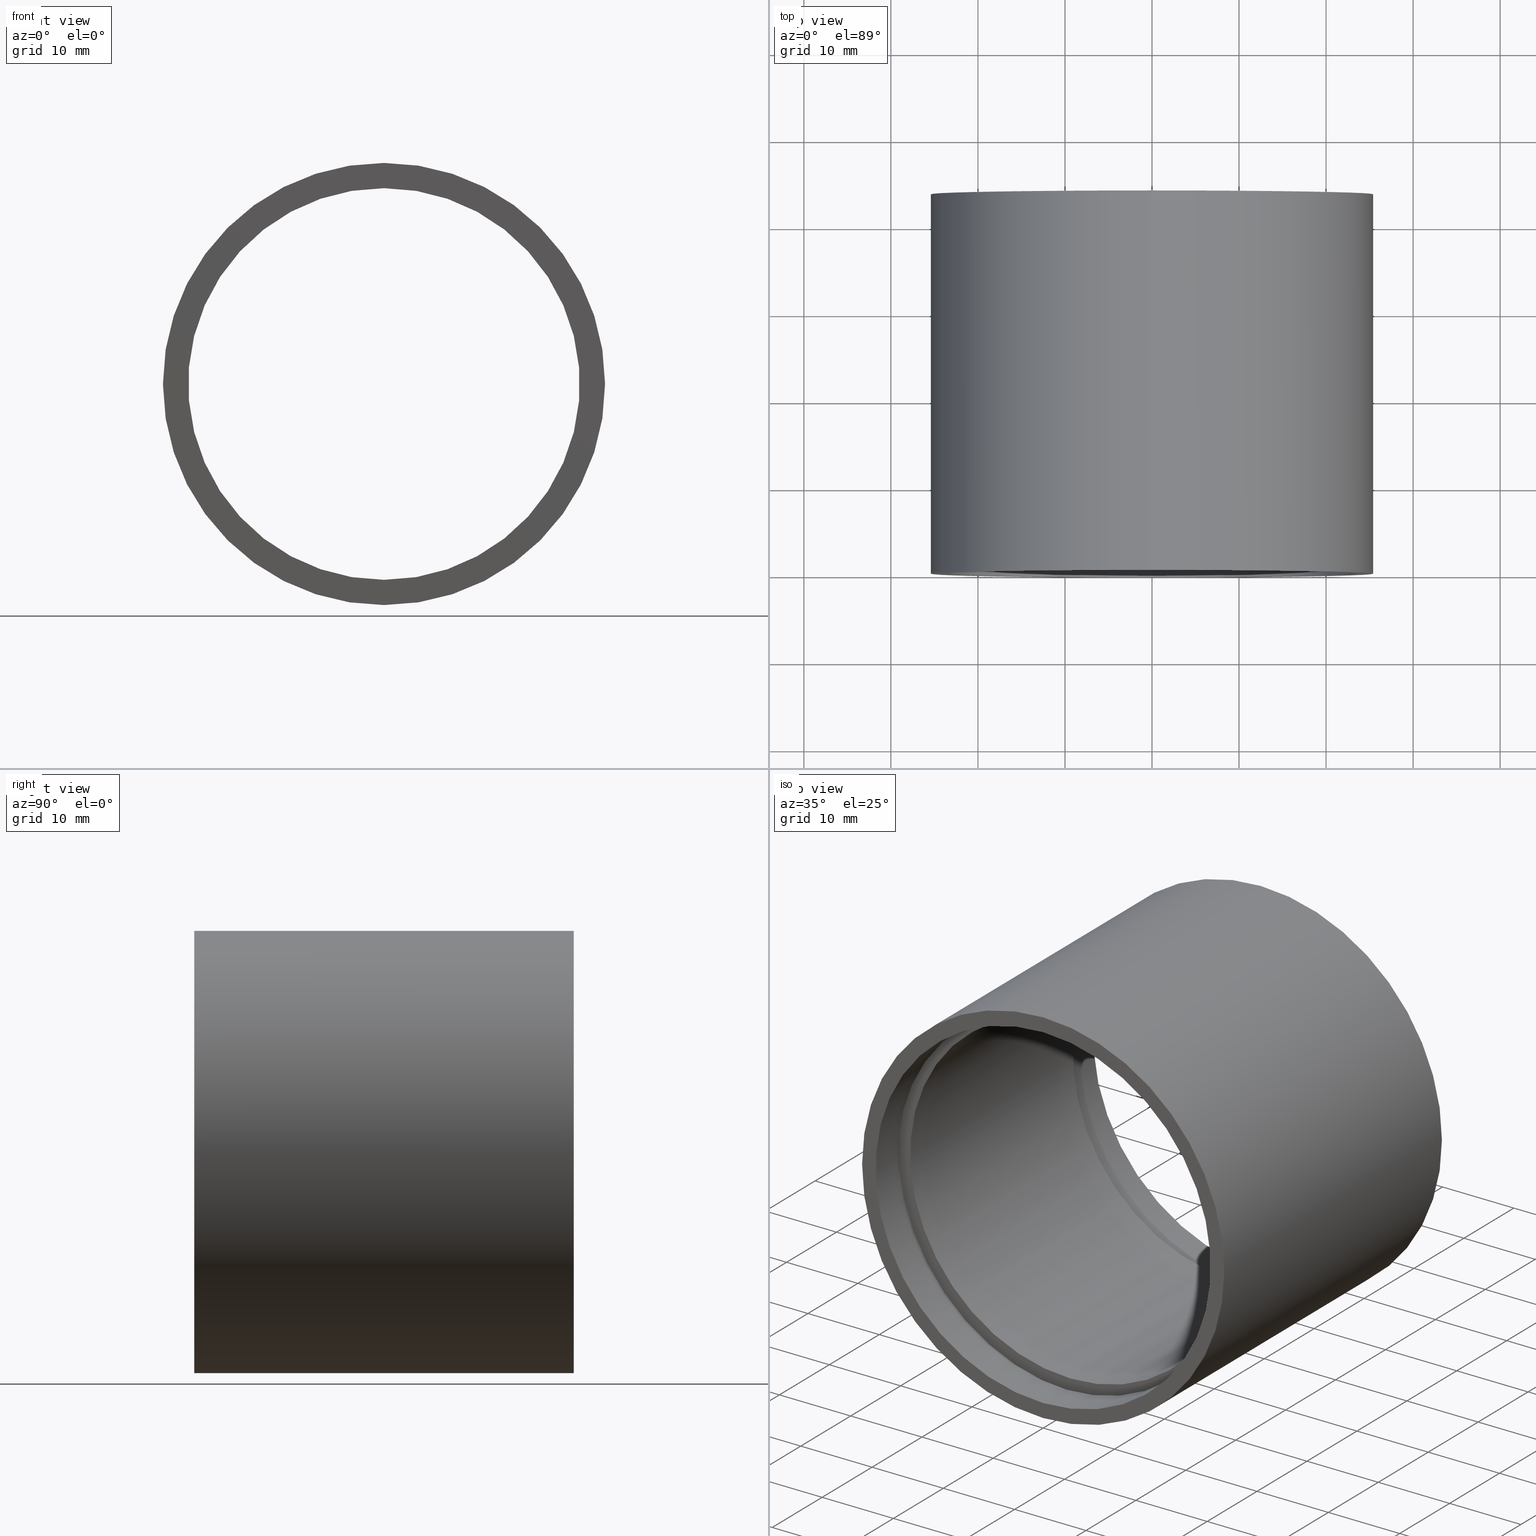
[diagram: canonical four-view strip — front | top / right | iso, engineering-drawing reading convention]
A machine part, canonical four-view strip (front | top / right | iso — engineering-drawing reading convention). The complete STEP part file that produces these views, byte-faithful:
ISO-10303-21;
HEADER;
FILE_DESCRIPTION (( 'STEP AP214' ),
    '1' );
FILE_NAME ('503019.STEP',
    '2019-09-06T02:04:59',
    ( '' ),
    ( '' ),
    'SwSTEP 2.0',
    'SolidWorks 2016',
    '' );
FILE_SCHEMA (( 'AUTOMOTIVE_DESIGN' ));
ENDSEC;

DATA;
#1 = DIRECTION ( 'NONE',  ( 0.0000000000000000000, 0.0000000000000000000, 1.000000000000000000 ) ) ;
#2 = FACE_OUTER_BOUND ( 'NONE', #495, .T. ) ;
#3 = CARTESIAN_POINT ( 'NONE',  ( 0.0000000000000000000, -2.775557561562891400E-014, 25.40000000000001300 ) ) ;
#4 = VERTEX_POINT ( 'NONE', #619 ) ;
#5 = VERTEX_POINT ( 'NONE', #173 ) ;
#6 = DIRECTION ( 'NONE',  ( 0.0000000000000000000, 0.0000000000000000000, 1.000000000000000000 ) ) ;
#7 = AXIS2_PLACEMENT_3D ( 'NONE', #522, #581, #273 ) ;
#8 = SHAPE_DEFINITION_REPRESENTATION ( #128, #212 ) ;
#9 = PRESENTATION_STYLE_ASSIGNMENT (( #90 ) ) ;
#10 = AXIS2_PLACEMENT_3D ( 'NONE', #372, #60, #527 ) ;
#11 = AXIS2_PLACEMENT_3D ( 'NONE', #347, #494, #85 ) ;
#12 = PRESENTATION_STYLE_ASSIGNMENT (( #189 ) ) ;
#13 = VERTEX_POINT ( 'NONE', #504 ) ;
#14 = EDGE_CURVE ( 'NONE', #148, #507, #463, .T. ) ;
#15 = DIRECTION ( 'NONE',  ( -0.0000000000000000000, 1.000000000000000000, -0.0000000000000000000 ) ) ;
#16 = DIRECTION ( 'NONE',  ( -0.0000000000000000000, 1.000000000000000000, -0.0000000000000000000 ) ) ;
#17 = ORIENTED_EDGE ( 'NONE', *, *, #324, .F. ) ;
#18 = LINE ( 'NONE', #251, #374 ) ;
#19 = DIRECTION ( 'NONE',  ( 0.0000000000000000000, 0.0000000000000000000, 1.000000000000000000 ) ) ;
#20 = LINE ( 'NONE', #156, #361 ) ;
#21 = DIRECTION ( 'NONE',  ( -0.0000000000000000000, 1.000000000000000000, -0.0000000000000000000 ) ) ;
#22 = ORIENTED_EDGE ( 'NONE', *, *, #244, .T. ) ;
#23 = EDGE_LOOP ( 'NONE', ( #110, #477 ) ) ;
#24 = ADVANCED_FACE ( 'NONE', ( #491 ), #394, .T. ) ;
#25 = AXIS2_PLACEMENT_3D ( 'NONE', #187, #516, #57 ) ;
#26 = MECHANICAL_DESIGN_GEOMETRIC_PRESENTATION_REPRESENTATION (  '', ( #616 ), #55 ) ;
#27 = DIRECTION ( 'NONE',  ( -0.0000000000000000000, 1.000000000000000000, -0.0000000000000000000 ) ) ;
#28 =( LENGTH_UNIT ( ) NAMED_UNIT ( * ) SI_UNIT ( .MILLI., .METRE. ) );
#29 = CYLINDRICAL_SURFACE ( 'NONE', #259, 25.40000000000001600 ) ;
#30 = EDGE_CURVE ( 'NONE', #296, #421, #528, .T. ) ;
#31 = COLOUR_RGB ( '',1.000000000000000000, 1.000000000000000000, 1.000000000000000000 ) ;
#32 = ORIENTED_EDGE ( 'NONE', *, *, #179, .F. ) ;
#33 = DIRECTION ( 'NONE',  ( 0.0000000000000000000, 0.0000000000000000000, 1.000000000000000000 ) ) ;
#34 = ORIENTED_EDGE ( 'NONE', *, *, #539, .T. ) ;
#35 =( NAMED_UNIT ( * ) SI_UNIT ( $, .STERADIAN. ) SOLID_ANGLE_UNIT ( ) );
#36 =( NAMED_UNIT ( * ) SI_UNIT ( $, .STERADIAN. ) SOLID_ANGLE_UNIT ( ) );
#37 = CARTESIAN_POINT ( 'NONE',  ( 0.0000000000000000000, 161.3761669434274500, 0.0000000000000000000 ) ) ;
#38 = FILL_AREA_STYLE ('',( #499 ) ) ;
#39 = AXIS2_PLACEMENT_3D ( 'NONE', #101, #318, #515 ) ;
#40 = PRESENTATION_LAYER_ASSIGNMENT (  '', '', ( #87 ) ) ;
#41 =( GEOMETRIC_REPRESENTATION_CONTEXT ( 3 ) GLOBAL_UNCERTAINTY_ASSIGNED_CONTEXT ( ( #157 ) ) GLOBAL_UNIT_ASSIGNED_CONTEXT ( ( #596, #426, #588 ) ) REPRESENTATION_CONTEXT ( 'NONE', 'WORKASPACE' ) );
#42 = ORIENTED_EDGE ( 'NONE', *, *, #486, .T. ) ;
#43 = DIRECTION ( 'NONE',  ( 0.0000000000000000000, 0.0000000000000000000, 1.000000000000000000 ) ) ;
#44 = CARTESIAN_POINT ( 'NONE',  ( 22.50000000000001800, 5.499999999999984900, 0.0000000000000000000 ) ) ;
#45 = EDGE_CURVE ( 'NONE', #427, #624, #18, .T. ) ;
#46 = ORIENTED_EDGE ( 'NONE', *, *, #93, .F. ) ;
#47 = COLOUR_RGB ( '',1.000000000000000000, 1.000000000000000000, 1.000000000000000000 ) ;
#48 = PRODUCT_DEFINITION_CONTEXT ( 'detailed design', #534, 'design' ) ;
#49 = VECTOR ( 'NONE', #307, 1000.000000000000000 ) ;
#50 = PLANE ( 'NONE',  #39 ) ;
#51 = EDGE_LOOP ( 'NONE', ( #191, #606 ) ) ;
#52 = ORIENTED_EDGE ( 'NONE', *, *, #502, .F. ) ;
#53 = DIRECTION ( 'NONE',  ( 0.0000000000000000000, 0.0000000000000000000, 1.000000000000000000 ) ) ;
#54 = AXIS2_PLACEMENT_3D ( 'NONE', #364, #419, #471 ) ;
#55 =( GEOMETRIC_REPRESENTATION_CONTEXT ( 3 ) GLOBAL_UNCERTAINTY_ASSIGNED_CONTEXT ( ( #376 ) ) GLOBAL_UNIT_ASSIGNED_CONTEXT ( ( #548, #248, #36 ) ) REPRESENTATION_CONTEXT ( 'NONE', 'WORKASPACE' ) );
#56 = LINE ( 'NONE', #478, #188 ) ;
#57 = DIRECTION ( 'NONE',  ( 0.0000000000000000000, 0.0000000000000000000, 1.000000000000000000 ) ) ;
#58 = CARTESIAN_POINT ( 'NONE',  ( 2.951398785945125600E-015, 38.09999999999998000, -24.10000000000003300 ) ) ;
#59 = VERTEX_POINT ( 'NONE', #396 ) ;
#60 = DIRECTION ( 'NONE',  ( -0.0000000000000000000, 1.000000000000000000, -0.0000000000000000000 ) ) ;
#61 = SURFACE_STYLE_USAGE ( .BOTH. , #158 ) ;
#62 = ORIENTED_EDGE ( 'NONE', *, *, #72, .T. ) ;
#63 =( NAMED_UNIT ( * ) PLANE_ANGLE_UNIT ( ) SI_UNIT ( $, .RADIAN. ) );
#64 = FACE_BOUND ( 'NONE', #309, .T. ) ;
#65 =( NAMED_UNIT ( * ) PLANE_ANGLE_UNIT ( ) SI_UNIT ( $, .RADIAN. ) );
#66 = EDGE_LOOP ( 'NONE', ( #279, #579 ) ) ;
#67 = CARTESIAN_POINT ( 'NONE',  ( 0.0000000000000000000, 161.3761669434274500, 0.0000000000000000000 ) ) ;
#68 = FACE_OUTER_BOUND ( 'NONE', #399, .T. ) ;
#69 = CYLINDRICAL_SURFACE ( 'NONE', #496, 24.10000000000001900 ) ;
#70 = CARTESIAN_POINT ( 'NONE',  ( 2.951398785945125600E-015, 39.09999999999998000, -24.10000000000003300 ) ) ;
#71 = FILL_AREA_STYLE ('',( #118 ) ) ;
#72 = EDGE_CURVE ( 'NONE', #587, #80, #249, .T. ) ;
#73 = EDGE_LOOP ( 'NONE', ( #569, #170 ) ) ;
#74 = MECHANICAL_DESIGN_GEOMETRIC_PRESENTATION_REPRESENTATION (  '', ( #520 ), #363 ) ;
#75 = ORIENTED_EDGE ( 'NONE', *, *, #30, .T. ) ;
#76 = CARTESIAN_POINT ( 'NONE',  ( 2.951398785945123600E-015, 5.499999999999976900, -24.10000000000001900 ) ) ;
#77 = CARTESIAN_POINT ( 'NONE',  ( 0.0000000000000000000, 4.499999999999976000, 0.0000000000000000000 ) ) ;
#78 = ORIENTED_EDGE ( 'NONE', *, *, #332, .F. ) ;
#79 = ADVANCED_FACE ( 'NONE', ( #612 ), #622, .F. ) ;
#80 = VERTEX_POINT ( 'NONE', #215 ) ;
#81 = CYLINDRICAL_SURFACE ( 'NONE', #174, 23.50000000000002100 ) ;
#82 = CARTESIAN_POINT ( 'NONE',  ( 2.755455298081546700E-015, 38.09999999999998000, -22.50000000000001800 ) ) ;
#83 = ADVANCED_FACE ( 'NONE', ( #151 ), #335, .F. ) ;
#84 = DIRECTION ( 'NONE',  ( -0.0000000000000000000, 1.000000000000000000, -0.0000000000000000000 ) ) ;
#85 = DIRECTION ( 'NONE',  ( 0.0000000000000000000, -0.0000000000000000000, -1.000000000000000000 ) ) ;
#86 = CIRCLE ( 'NONE', #10, 25.40000000000002000 ) ;
#87 = STYLED_ITEM ( 'NONE', ( #433 ), #343 ) ;
#88 = AXIS2_PLACEMENT_3D ( 'NONE', #450, #444, #177 ) ;
#89 = CYLINDRICAL_SURFACE ( 'NONE', #228, 24.10000000000003300 ) ;
#90 = SURFACE_STYLE_USAGE ( .BOTH. , #564 ) ;
#91 = CIRCLE ( 'NONE', #149, 23.50000000000002100 ) ;
#92 = SURFACE_SIDE_STYLE ('',( #352 ) ) ;
#93 = EDGE_CURVE ( 'NONE', #427, #245, #121, .T. ) ;
#94 = FILL_AREA_STYLE ('',( #263 ) ) ;
#95 = VERTEX_POINT ( 'NONE', #355 ) ;
#96 =( NAMED_UNIT ( * ) SI_UNIT ( $, .STERADIAN. ) SOLID_ANGLE_UNIT ( ) );
#97 = FACE_OUTER_BOUND ( 'NONE', #194, .T. ) ;
#98 = ORIENTED_EDGE ( 'NONE', *, *, #332, .T. ) ;
#99 = CARTESIAN_POINT ( 'NONE',  ( 2.877919977996282700E-015, -2.775557561562891400E-014, -23.50000000000002100 ) ) ;
#100 = FACE_BOUND ( 'NONE', #126, .T. ) ;
#101 = CARTESIAN_POINT ( 'NONE',  ( 23.50000000000002100, -1.436345924723669800E-014, 0.0000000000000000000 ) ) ;
#102 = LINE ( 'NONE', #113, #406 ) ;
#103 = CARTESIAN_POINT ( 'NONE',  ( 0.0000000000000000000, 5.499999999999976900, 24.10000000000001900 ) ) ;
#104 = FILL_AREA_STYLE_COLOUR ( '', #31 ) ;
#105 = AXIS2_PLACEMENT_3D ( 'NONE', #442, #497, #301 ) ;
#106 = PRESENTATION_LAYER_ASSIGNMENT (  '', '', ( #482 ) ) ;
#107 =( NAMED_UNIT ( * ) PLANE_ANGLE_UNIT ( ) SI_UNIT ( $, .RADIAN. ) );
#108 = EDGE_LOOP ( 'NONE', ( #233, #551, #311, #236 ) ) ;
#109 = CARTESIAN_POINT ( 'NONE',  ( 0.0000000000000000000, 43.59999999999998700, 0.0000000000000000000 ) ) ;
#110 = ORIENTED_EDGE ( 'NONE', *, *, #232, .T. ) ;
#111 = MANIFOLD_SOLID_BREP ( '��ת1', #354 ) ;
#112 = CARTESIAN_POINT ( 'NONE',  ( 2.877919977996282700E-015, 43.59999999999998700, -23.50000000000002100 ) ) ;
#113 = CARTESIAN_POINT ( 'NONE',  ( 0.0000000000000000000, 161.3761669434274500, 23.50000000000002100 ) ) ;
#114 = COLOUR_RGB ( '',1.000000000000000000, 1.000000000000000000, 1.000000000000000000 ) ;
#115 = AXIS2_PLACEMENT_3D ( 'NONE', #109, #15, #280 ) ;
#116 = DIRECTION ( 'NONE',  ( 1.000000000000000000, 0.0000000000000000000, 0.0000000000000000000 ) ) ;
#117 = STYLED_ITEM ( 'NONE', ( #446 ), #541 ) ;
#118 = FILL_AREA_STYLE_COLOUR ( '', #47 ) ;
#119 = CARTESIAN_POINT ( 'NONE',  ( 3.110602869834278800E-015, -2.775557561562891400E-014, -25.40000000000001300 ) ) ;
#120 = EDGE_CURVE ( 'NONE', #252, #392, #206, .T. ) ;
#121 = CIRCLE ( 'NONE', #334, 25.40000000000001300 ) ;
#122 = ADVANCED_FACE ( 'NONE', ( #420 ), #89, .F. ) ;
#123 = CIRCLE ( 'NONE', #88, 22.50000000000001800 ) ;
#124 = CARTESIAN_POINT ( 'NONE',  ( 24.10000000000003300, 39.09999999999998000, 0.0000000000000000000 ) ) ;
#125 = DIRECTION ( 'NONE',  ( -0.0000000000000000000, 1.000000000000000000, -0.0000000000000000000 ) ) ;
#126 = EDGE_LOOP ( 'NONE', ( #521, #608 ) ) ;
#127 = CARTESIAN_POINT ( 'NONE',  ( 0.0000000000000000000, 5.499999999999976900, 0.0000000000000000000 ) ) ;
#128 = PRODUCT_DEFINITION_SHAPE ( 'NONE', 'NONE',  #205 ) ;
#129 = DIRECTION ( 'NONE',  ( 0.0000000000000000000, 0.0000000000000000000, 1.000000000000000000 ) ) ;
#130 = EDGE_LOOP ( 'NONE', ( #436, #185, #289, #182 ) ) ;
#131 = CIRCLE ( 'NONE', #600, 24.10000000000001900 ) ;
#132 = UNCERTAINTY_MEASURE_WITH_UNIT (LENGTH_MEASURE( 1.000000000000000100E-005 ), #226, 'distance_accuracy_value', 'NONE');
#133 = ORIENTED_EDGE ( 'NONE', *, *, #457, .T. ) ;
#134 = EDGE_LOOP ( 'NONE', ( #474, #133, #62, #571 ) ) ;
#135 = ADVANCED_FACE ( 'NONE', ( #434 ), #460, .F. ) ;
#136 = FILL_AREA_STYLE_COLOUR ( '', #509 ) ;
#137 = MECHANICAL_DESIGN_GEOMETRIC_PRESENTATION_REPRESENTATION (  '', ( #319 ), #558 ) ;
#138 = CIRCLE ( 'NONE', #54, 23.50000000000002100 ) ;
#139 = DIRECTION ( 'NONE',  ( -0.0000000000000000000, 1.000000000000000000, -0.0000000000000000000 ) ) ;
#140 = VECTOR ( 'NONE', #338, 1000.000000000000000 ) ;
#141 = FACE_OUTER_BOUND ( 'NONE', #487, .T. ) ;
#142 = CARTESIAN_POINT ( 'NONE',  ( 0.0000000000000000000, 38.09999999999998000, 0.0000000000000000000 ) ) ;
#143 = ORIENTED_EDGE ( 'NONE', *, *, #580, .F. ) ;
#144 = ORIENTED_EDGE ( 'NONE', *, *, #14, .T. ) ;
#145 = LINE ( 'NONE', #438, #613 ) ;
#146 = CIRCLE ( 'NONE', #615, 23.50000000000002100 ) ;
#147 = CARTESIAN_POINT ( 'NONE',  ( 0.0000000000000000000, 39.09999999999998000, 23.50000000000002100 ) ) ;
#148 = VERTEX_POINT ( 'NONE', #317 ) ;
#149 = AXIS2_PLACEMENT_3D ( 'NONE', #270, #467, #1 ) ;
#150 = AXIS2_PLACEMENT_3D ( 'NONE', #308, #139, #224 ) ;
#151 = FACE_OUTER_BOUND ( 'NONE', #428, .T. ) ;
#152 = CIRCLE ( 'NONE', #418, 24.10000000000003300 ) ;
#153 = EDGE_CURVE ( 'NONE', #507, #242, #298, .T. ) ;
#154 = CARTESIAN_POINT ( 'NONE',  ( 2.877919977996282700E-015, 4.499999999999976000, -23.50000000000002100 ) ) ;
#155 = ORIENTED_EDGE ( 'NONE', *, *, #208, .T. ) ;
#156 = CARTESIAN_POINT ( 'NONE',  ( 0.0000000000000000000, 161.3761669434274500, 24.10000000000003300 ) ) ;
#157 = UNCERTAINTY_MEASURE_WITH_UNIT (LENGTH_MEASURE( 1.000000000000000100E-005 ), #596, 'distance_accuracy_value', 'NONE');
#158 = SURFACE_SIDE_STYLE ('',( #274 ) ) ;
#159 = VERTEX_POINT ( 'NONE', #99 ) ;
#160 =( NAMED_UNIT ( * ) SI_UNIT ( $, .STERADIAN. ) SOLID_ANGLE_UNIT ( ) );
#161 = APPLICATION_PROTOCOL_DEFINITION ( 'draft international standard', 'automotive_design', 1998, #534 ) ;
#162 = VERTEX_POINT ( 'NONE', #369 ) ;
#163 = DIRECTION ( 'NONE',  ( -0.0000000000000000000, 1.000000000000000000, -0.0000000000000000000 ) ) ;
#164 = VECTOR ( 'NONE', #609, 1000.000000000000000 ) ;
#165 = AXIS2_PLACEMENT_3D ( 'NONE', #468, #572, #367 ) ;
#166 = CARTESIAN_POINT ( 'NONE',  ( 2.877919977996282700E-015, 39.09999999999998000, -23.50000000000002100 ) ) ;
#167 = ADVANCED_FACE ( 'NONE', ( #97, #64 ), #50, .F. ) ;
#168 = ORIENTED_EDGE ( 'NONE', *, *, #517, .T. ) ;
#169 = DIRECTION ( 'NONE',  ( -0.0000000000000000000, 1.000000000000000000, 0.0000000000000000000 ) ) ;
#170 = ORIENTED_EDGE ( 'NONE', *, *, #486, .F. ) ;
#171 = DIRECTION ( 'NONE',  ( -0.0000000000000000000, 1.000000000000000000, -0.0000000000000000000 ) ) ;
#172 = UNCERTAINTY_MEASURE_WITH_UNIT (LENGTH_MEASURE( 1.000000000000000100E-005 ), #329, 'distance_accuracy_value', 'NONE');
#173 = CARTESIAN_POINT ( 'NONE',  ( 0.0000000000000000000, 43.59999999999998700, 25.40000000000002000 ) ) ;
#174 = AXIS2_PLACEMENT_3D ( 'NONE', #275, #360, #323 ) ;
#175 = AXIS2_PLACEMENT_3D ( 'NONE', #44, #221, #563 ) ;
#176 = LINE ( 'NONE', #336, #503 ) ;
#177 = DIRECTION ( 'NONE',  ( 0.0000000000000000000, 0.0000000000000000000, 1.000000000000000000 ) ) ;
#178 =( LENGTH_UNIT ( ) NAMED_UNIT ( * ) SI_UNIT ( .MILLI., .METRE. ) );
#179 = EDGE_CURVE ( 'NONE', #245, #427, #586, .T. ) ;
#180 = DIRECTION ( 'NONE',  ( -0.0000000000000000000, 1.000000000000000000, -0.0000000000000000000 ) ) ;
#181 =( NAMED_UNIT ( * ) PLANE_ANGLE_UNIT ( ) SI_UNIT ( $, .RADIAN. ) );
#182 = ORIENTED_EDGE ( 'NONE', *, *, #310, .T. ) ;
#183 = DIRECTION ( 'NONE',  ( -0.0000000000000000000, 1.000000000000000000, -0.0000000000000000000 ) ) ;
#184 = ORIENTED_EDGE ( 'NONE', *, *, #45, .T. ) ;
#185 = ORIENTED_EDGE ( 'NONE', *, *, #120, .F. ) ;
#186 = DIRECTION ( 'NONE',  ( -0.0000000000000000000, 1.000000000000000000, -0.0000000000000000000 ) ) ;
#187 = CARTESIAN_POINT ( 'NONE',  ( 0.0000000000000000000, 39.09999999999998000, 0.0000000000000000000 ) ) ;
#188 = VECTOR ( 'NONE', #203, 1000.000000000000000 ) ;
#189 = SURFACE_STYLE_USAGE ( .BOTH. , #322 ) ;
#190 = PRESENTATION_STYLE_ASSIGNMENT (( #266 ) ) ;
#191 = ORIENTED_EDGE ( 'NONE', *, *, #310, .F. ) ;
#192 =( NAMED_UNIT ( * ) SI_UNIT ( $, .STERADIAN. ) SOLID_ANGLE_UNIT ( ) );
#193 = AXIS2_PLACEMENT_3D ( 'NONE', #568, #183, #6 ) ;
#194 = EDGE_LOOP ( 'NONE', ( #32, #46 ) ) ;
#195 = CARTESIAN_POINT ( 'NONE',  ( 0.0000000000000000000, -2.775557561562891400E-014, 0.0000000000000000000 ) ) ;
#196 = EDGE_LOOP ( 'NONE', ( #225, #75, #42, #78 ) ) ;
#197 = CARTESIAN_POINT ( 'NONE',  ( 0.0000000000000000000, 0.0000000000000000000, 0.0000000000000000000 ) ) ;
#198 = DIRECTION ( 'NONE',  ( -0.0000000000000000000, 1.000000000000000000, -0.0000000000000000000 ) ) ;
#199 = ORIENTED_EDGE ( 'NONE', *, *, #72, .F. ) ;
#200 = PRODUCT_CONTEXT ( 'NONE', #384, 'mechanical' ) ;
#201 = EDGE_CURVE ( 'NONE', #373, #421, #213, .T. ) ;
#202 = CYLINDRICAL_SURFACE ( 'NONE', #320, 23.50000000000002100 ) ;
#203 = DIRECTION ( 'NONE',  ( -0.0000000000000000000, 1.000000000000000000, -0.0000000000000000000 ) ) ;
#204 = AXIS2_PLACEMENT_3D ( 'NONE', #379, #16, #281 ) ;
#205 = PRODUCT_DEFINITION ( 'δ֪', '', #304, #48 ) ;
#206 = CIRCLE ( 'NONE', #472, 23.50000000000002100 ) ;
#207 = ADVANCED_FACE ( 'NONE', ( #141 ), #81, .F. ) ;
#208 = EDGE_CURVE ( 'NONE', #214, #508, #138, .T. ) ;
#209 = ORIENTED_EDGE ( 'NONE', *, *, #502, .T. ) ;
#210 = DIRECTION ( 'NONE',  ( -0.0000000000000000000, 1.000000000000000000, -0.0000000000000000000 ) ) ;
#211 = DIRECTION ( 'NONE',  ( -0.0000000000000000000, 1.000000000000000000, -0.0000000000000000000 ) ) ;
#212 = ADVANCED_BREP_SHAPE_REPRESENTATION ( '503019', ( #111, #321 ), #41 ) ;
#213 = CIRCLE ( 'NONE', #25, 24.10000000000003300 ) ;
#214 = VERTEX_POINT ( 'NONE', #154 ) ;
#215 = CARTESIAN_POINT ( 'NONE',  ( 0.0000000000000000000, 38.09999999999998000, 22.50000000000001800 ) ) ;
#216 = CIRCLE ( 'NONE', #403, 23.50000000000002100 ) ;
#217 = DIRECTION ( 'NONE',  ( -0.0000000000000000000, 1.000000000000000000, -0.0000000000000000000 ) ) ;
#218 = DIRECTION ( 'NONE',  ( -0.0000000000000000000, 1.000000000000000000, -0.0000000000000000000 ) ) ;
#219 =( NAMED_UNIT ( * ) PLANE_ANGLE_UNIT ( ) SI_UNIT ( $, .RADIAN. ) );
#220 = EDGE_CURVE ( 'NONE', #159, #459, #91, .T. ) ;
#221 = DIRECTION ( 'NONE',  ( -0.0000000000000000000, 1.000000000000000000, 0.0000000000000000000 ) ) ;
#222 = SURFACE_STYLE_FILL_AREA ( #94 ) ;
#223 = FACE_OUTER_BOUND ( 'NONE', #401, .T. ) ;
#224 = DIRECTION ( 'NONE',  ( 0.0000000000000000000, 0.0000000000000000000, 1.000000000000000000 ) ) ;
#225 = ORIENTED_EDGE ( 'NONE', *, *, #605, .F. ) ;
#226 =( LENGTH_UNIT ( ) NAMED_UNIT ( * ) SI_UNIT ( .MILLI., .METRE. ) );
#227 = FACE_OUTER_BOUND ( 'NONE', #108, .T. ) ;
#228 = AXIS2_PLACEMENT_3D ( 'NONE', #351, #180, #458 ) ;
#229 = MECHANICAL_DESIGN_GEOMETRIC_PRESENTATION_REPRESENTATION (  '', ( #87 ), #258 ) ;
#230 = COLOUR_RGB ( '',1.000000000000000000, 1.000000000000000000, 1.000000000000000000 ) ;
#231 = CIRCLE ( 'NONE', #573, 23.50000000000002100 ) ;
#232 = EDGE_CURVE ( 'NONE', #4, #95, #493, .T. ) ;
#233 = ORIENTED_EDGE ( 'NONE', *, *, #457, .F. ) ;
#234 = CARTESIAN_POINT ( 'NONE',  ( 0.0000000000000000000, 161.3761669434274500, 0.0000000000000000000 ) ) ;
#235 = DIRECTION ( 'NONE',  ( -0.0000000000000000000, 1.000000000000000000, -0.0000000000000000000 ) ) ;
#236 = ORIENTED_EDGE ( 'NONE', *, *, #580, .T. ) ;
#237 = FACE_OUTER_BOUND ( 'NONE', #73, .T. ) ;
#238 = FACE_OUTER_BOUND ( 'NONE', #365, .T. ) ;
#239 = ORIENTED_EDGE ( 'NONE', *, *, #179, .T. ) ;
#240 = CARTESIAN_POINT ( 'NONE',  ( 3.110602869834279600E-015, 43.59999999999998700, -25.40000000000002300 ) ) ;
#241 = CARTESIAN_POINT ( 'NONE',  ( 0.0000000000000000000, -2.775557561562891400E-014, 23.50000000000002100 ) ) ;
#242 = VERTEX_POINT ( 'NONE', #103 ) ;
#243 = VECTOR ( 'NONE', #210, 1000.000000000000000 ) ;
#244 = EDGE_CURVE ( 'NONE', #5, #624, #86, .T. ) ;
#245 = VERTEX_POINT ( 'NONE', #3 ) ;
#246 =( NAMED_UNIT ( * ) PLANE_ANGLE_UNIT ( ) SI_UNIT ( $, .RADIAN. ) );
#247 = ORIENTED_EDGE ( 'NONE', *, *, #14, .F. ) ;
#248 =( NAMED_UNIT ( * ) PLANE_ANGLE_UNIT ( ) SI_UNIT ( $, .RADIAN. ) );
#249 = CIRCLE ( 'NONE', #284, 22.50000000000001800 ) ;
#250 = FACE_OUTER_BOUND ( 'NONE', #299, .T. ) ;
#251 = CARTESIAN_POINT ( 'NONE',  ( 3.110602869834278800E-015, 161.3761669434274500, -25.40000000000001600 ) ) ;
#252 = VERTEX_POINT ( 'NONE', #147 ) ;
#253 = CARTESIAN_POINT ( 'NONE',  ( 0.0000000000000000000, 161.3761669434274500, 0.0000000000000000000 ) ) ;
#254 = ADVANCED_FACE ( 'NONE', ( #250 ), #69, .F. ) ;
#255 = ORIENTED_EDGE ( 'NONE', *, *, #201, .T. ) ;
#256 = AXIS2_PLACEMENT_3D ( 'NONE', #490, #217, #340 ) ;
#257 = CARTESIAN_POINT ( 'NONE',  ( 0.0000000000000000000, 38.09999999999998000, 0.0000000000000000000 ) ) ;
#258 =( GEOMETRIC_REPRESENTATION_CONTEXT ( 3 ) GLOBAL_UNCERTAINTY_ASSIGNED_CONTEXT ( ( #172 ) ) GLOBAL_UNIT_ASSIGNED_CONTEXT ( ( #329, #65, #377 ) ) REPRESENTATION_CONTEXT ( 'NONE', 'WORKASPACE' ) );
#259 = AXIS2_PLACEMENT_3D ( 'NONE', #253, #218, #614 ) ;
#260 = ADVANCED_FACE ( 'NONE', ( #238 ), #593, .F. ) ;
#261 = CARTESIAN_POINT ( 'NONE',  ( 0.0000000000000000000, 39.09999999999998000, 0.0000000000000000000 ) ) ;
#262 = EDGE_CURVE ( 'NONE', #459, #159, #146, .T. ) ;
#263 = FILL_AREA_STYLE_COLOUR ( '', #230 ) ;
#264 = ORIENTED_EDGE ( 'NONE', *, *, #517, .F. ) ;
#265 = EDGE_LOOP ( 'NONE', ( #366, #269 ) ) ;
#266 = SURFACE_STYLE_USAGE ( .BOTH. , #462 ) ;
#267 = VECTOR ( 'NONE', #404, 1000.000000000000000 ) ;
#268 = CARTESIAN_POINT ( 'NONE',  ( 0.0000000000000000000, 5.499999999999976900, 0.0000000000000000000 ) ) ;
#269 = ORIENTED_EDGE ( 'NONE', *, *, #324, .T. ) ;
#270 = CARTESIAN_POINT ( 'NONE',  ( 0.0000000000000000000, -2.775557561562891400E-014, 0.0000000000000000000 ) ) ;
#271 = ORIENTED_EDGE ( 'NONE', *, *, #469, .T. ) ;
#272 = CYLINDRICAL_SURFACE ( 'NONE', #150, 22.50000000000001800 ) ;
#273 = DIRECTION ( 'NONE',  ( 0.0000000000000000000, 0.0000000000000000000, 1.000000000000000000 ) ) ;
#274 = SURFACE_STYLE_FILL_AREA ( #327 ) ;
#275 = CARTESIAN_POINT ( 'NONE',  ( 0.0000000000000000000, 161.3761669434274500, 0.0000000000000000000 ) ) ;
#276 = MECHANICAL_DESIGN_GEOMETRIC_PRESENTATION_REPRESENTATION (  '', ( #543 ), #346 ) ;
#277 = EDGE_LOOP ( 'NONE', ( #282, #532 ) ) ;
#278 = DIRECTION ( 'NONE',  ( 0.0000000000000000000, 0.0000000000000000000, 1.000000000000000000 ) ) ;
#279 = ORIENTED_EDGE ( 'NONE', *, *, #120, .T. ) ;
#280 = DIRECTION ( 'NONE',  ( 0.0000000000000000000, 0.0000000000000000000, 1.000000000000000000 ) ) ;
#281 = DIRECTION ( 'NONE',  ( 0.0000000000000000000, 0.0000000000000000000, 1.000000000000000000 ) ) ;
#282 = ORIENTED_EDGE ( 'NONE', *, *, #435, .F. ) ;
#283 = DIRECTION ( 'NONE',  ( -0.0000000000000000000, 1.000000000000000000, -0.0000000000000000000 ) ) ;
#284 = AXIS2_PLACEMENT_3D ( 'NONE', #257, #408, #129 ) ;
#285 = FACE_BOUND ( 'NONE', #23, .T. ) ;
#286 = AXIS2_PLACEMENT_3D ( 'NONE', #127, #598, #441 ) ;
#287 = DIRECTION ( 'NONE',  ( -0.0000000000000000000, 1.000000000000000000, -0.0000000000000000000 ) ) ;
#288 = SURFACE_STYLE_FILL_AREA ( #506 ) ;
#289 = ORIENTED_EDGE ( 'NONE', *, *, #306, .T. ) ;
#290 = CARTESIAN_POINT ( 'NONE',  ( 0.0000000000000000000, 4.499999999999976000, 23.50000000000002100 ) ) ;
#291 = EDGE_CURVE ( 'NONE', #95, #4, #557, .T. ) ;
#292 = DIRECTION ( 'NONE',  ( 0.0000000000000000000, 0.0000000000000000000, 1.000000000000000000 ) ) ;
#293 = ORIENTED_EDGE ( 'NONE', *, *, #262, .T. ) ;
#294 = CARTESIAN_POINT ( 'NONE',  ( 0.0000000000000000000, 38.09999999999998000, 0.0000000000000000000 ) ) ;
#295 = DIRECTION ( 'NONE',  ( -0.0000000000000000000, 1.000000000000000000, -0.0000000000000000000 ) ) ;
#296 = VERTEX_POINT ( 'NONE', #58 ) ;
#297 = CARTESIAN_POINT ( 'NONE',  ( 2.951398785945123600E-015, 161.3761669434274500, -24.10000000000001900 ) ) ;
#298 = CIRCLE ( 'NONE', #165, 24.10000000000001900 ) ;
#299 = EDGE_LOOP ( 'NONE', ( #17, #144, #512, #603 ) ) ;
#300 = SURFACE_SIDE_STYLE ('',( #337 ) ) ;
#301 = DIRECTION ( 'NONE',  ( 0.0000000000000000000, 0.0000000000000000000, 1.000000000000000000 ) ) ;
#302 = DIRECTION ( 'NONE',  ( -0.0000000000000000000, 1.000000000000000000, -0.0000000000000000000 ) ) ;
#303 = FACE_OUTER_BOUND ( 'NONE', #277, .T. ) ;
#304 = PRODUCT_DEFINITION_FORMATION_WITH_SPECIFIED_SOURCE ( '�κ�', '', #333, .NOT_KNOWN. ) ;
#305 = CARTESIAN_POINT ( 'NONE',  ( 0.0000000000000000000, 161.3761669434274500, 0.0000000000000000000 ) ) ;
#306 = EDGE_CURVE ( 'NONE', #252, #59, #102, .T. ) ;
#307 = DIRECTION ( 'NONE',  ( -0.0000000000000000000, 1.000000000000000000, -0.0000000000000000000 ) ) ;
#308 = CARTESIAN_POINT ( 'NONE',  ( 0.0000000000000000000, 161.3761669434274500, 0.0000000000000000000 ) ) ;
#309 = EDGE_LOOP ( 'NONE', ( #293, #566 ) ) ;
#310 = EDGE_CURVE ( 'NONE', #59, #339, #577, .T. ) ;
#311 = ORIENTED_EDGE ( 'NONE', *, *, #523, .T. ) ;
#312 = PLANE ( 'NONE',  #175 ) ;
#313 = DIRECTION ( 'NONE',  ( 0.0000000000000000000, 0.0000000000000000000, 1.000000000000000000 ) ) ;
#314 = UNCERTAINTY_MEASURE_WITH_UNIT (LENGTH_MEASURE( 1.000000000000000100E-005 ), #576, 'distance_accuracy_value', 'NONE');
#315 = ORIENTED_EDGE ( 'NONE', *, *, #368, .F. ) ;
#316 = ORIENTED_EDGE ( 'NONE', *, *, #368, .T. ) ;
#317 = CARTESIAN_POINT ( 'NONE',  ( 2.951398785945123600E-015, 4.499999999999976000, -24.10000000000001900 ) ) ;
#318 = DIRECTION ( 'NONE',  ( -0.0000000000000000000, 1.000000000000000000, 0.0000000000000000000 ) ) ;
#319 = STYLED_ITEM ( 'NONE', ( #190 ), #135 ) ;
#320 = AXIS2_PLACEMENT_3D ( 'NONE', #67, #163, #589 ) ;
#321 = AXIS2_PLACEMENT_3D ( 'NONE', #197, #19, #116 ) ;
#322 = SURFACE_SIDE_STYLE ('',( #388 ) ) ;
#323 = DIRECTION ( 'NONE',  ( 0.0000000000000000000, 0.0000000000000000000, 1.000000000000000000 ) ) ;
#324 = EDGE_CURVE ( 'NONE', #148, #13, #131, .T. ) ;
#325 = FILL_AREA_STYLE_COLOUR ( '', #114 ) ;
#326 = VECTOR ( 'NONE', #125, 1000.000000000000000 ) ;
#327 = FILL_AREA_STYLE ('',( #325 ) ) ;
#328 = ORIENTED_EDGE ( 'NONE', *, *, #435, .T. ) ;
#329 =( LENGTH_UNIT ( ) NAMED_UNIT ( * ) SI_UNIT ( .MILLI., .METRE. ) );
#330 = UNCERTAINTY_MEASURE_WITH_UNIT (LENGTH_MEASURE( 1.000000000000000100E-005 ), #511, 'distance_accuracy_value', 'NONE');
#331 = COLOUR_RGB ( '',1.000000000000000000, 1.000000000000000000, 1.000000000000000000 ) ;
#332 = EDGE_CURVE ( 'NONE', #162, #373, #20, .T. ) ;
#333 = PRODUCT ( '503019', '503019', '', ( #200 ) ) ;
#334 = AXIS2_PLACEMENT_3D ( 'NONE', #565, #623, #43 ) ;
#335 = CYLINDRICAL_SURFACE ( 'NONE', #371, 24.10000000000001900 ) ;
#336 = CARTESIAN_POINT ( 'NONE',  ( 0.0000000000000000000, 161.3761669434274500, 24.10000000000001900 ) ) ;
#337 = SURFACE_STYLE_FILL_AREA ( #505 ) ;
#338 = DIRECTION ( 'NONE',  ( -0.0000000000000000000, 1.000000000000000000, -0.0000000000000000000 ) ) ;
#339 = VERTEX_POINT ( 'NONE', #112 ) ;
#340 = DIRECTION ( 'NONE',  ( 0.0000000000000000000, 0.0000000000000000000, 1.000000000000000000 ) ) ;
#341 = PRODUCT_RELATED_PRODUCT_CATEGORY ( 'part', '', ( #333 ) ) ;
#342 = CARTESIAN_POINT ( 'NONE',  ( 0.0000000000000000000, 43.59999999999998700, 0.0000000000000000000 ) ) ;
#343 = ADVANCED_FACE ( 'NONE', ( #2 ), #202, .F. ) ;
#344 = CARTESIAN_POINT ( 'NONE',  ( 0.0000000000000000000, 4.499999999999976000, 0.0000000000000000000 ) ) ;
#345 = ORIENTED_EDGE ( 'NONE', *, *, #244, .F. ) ;
#346 =( GEOMETRIC_REPRESENTATION_CONTEXT ( 3 ) GLOBAL_UNCERTAINTY_ASSIGNED_CONTEXT ( ( #513 ) ) GLOBAL_UNIT_ASSIGNED_CONTEXT ( ( #453, #246, #607 ) ) REPRESENTATION_CONTEXT ( 'NONE', 'WORKASPACE' ) );
#347 = CARTESIAN_POINT ( 'NONE',  ( 23.50000000000002100, 4.499999999999984900, 0.0000000000000000000 ) ) ;
#348 = CARTESIAN_POINT ( 'NONE',  ( 0.0000000000000000000, 39.09999999999998000, 0.0000000000000000000 ) ) ;
#349 = DIRECTION ( 'NONE',  ( -0.0000000000000000000, 1.000000000000000000, -0.0000000000000000000 ) ) ;
#350 = DIRECTION ( 'NONE',  ( 0.0000000000000000000, -1.000000000000000000, 0.0000000000000000000 ) ) ;
#351 = CARTESIAN_POINT ( 'NONE',  ( 0.0000000000000000000, 161.3761669434274500, 0.0000000000000000000 ) ) ;
#352 = SURFACE_STYLE_FILL_AREA ( #38 ) ;
#353 = DIRECTION ( 'NONE',  ( -0.0000000000000000000, 1.000000000000000000, -0.0000000000000000000 ) ) ;
#354 = CLOSED_SHELL ( 'NONE', ( #207, #254, #541, #122, #79, #24, #167, #552, #398, #135, #489, #260, #590, #599, #611, #83, #556, #343 ) ) ;
#355 = CARTESIAN_POINT ( 'NONE',  ( 2.755455298081546700E-015, 5.499999999999976900, -22.50000000000001800 ) ) ;
#356 = ORIENTED_EDGE ( 'NONE', *, *, #306, .F. ) ;
#357 = SURFACE_STYLE_FILL_AREA ( #71 ) ;
#358 = SURFACE_STYLE_FILL_AREA ( #547 ) ;
#359 = FACE_OUTER_BOUND ( 'NONE', #265, .T. ) ;
#360 = DIRECTION ( 'NONE',  ( -0.0000000000000000000, 1.000000000000000000, -0.0000000000000000000 ) ) ;
#361 = VECTOR ( 'NONE', #585, 1000.000000000000000 ) ;
#362 =( GEOMETRIC_REPRESENTATION_CONTEXT ( 3 ) GLOBAL_UNCERTAINTY_ASSIGNED_CONTEXT ( ( #314 ) ) GLOBAL_UNIT_ASSIGNED_CONTEXT ( ( #576, #107, #414 ) ) REPRESENTATION_CONTEXT ( 'NONE', 'WORKASPACE' ) );
#363 =( GEOMETRIC_REPRESENTATION_CONTEXT ( 3 ) GLOBAL_UNCERTAINTY_ASSIGNED_CONTEXT ( ( #425 ) ) GLOBAL_UNIT_ASSIGNED_CONTEXT ( ( #28, #63, #160 ) ) REPRESENTATION_CONTEXT ( 'NONE', 'WORKASPACE' ) );
#364 = CARTESIAN_POINT ( 'NONE',  ( 0.0000000000000000000, 4.499999999999976000, 0.0000000000000000000 ) ) ;
#365 = EDGE_LOOP ( 'NONE', ( #415, #443, #98, #255 ) ) ;
#366 = ORIENTED_EDGE ( 'NONE', *, *, #390, .T. ) ;
#367 = DIRECTION ( 'NONE',  ( 0.0000000000000000000, 0.0000000000000000000, 1.000000000000000000 ) ) ;
#368 = EDGE_CURVE ( 'NONE', #245, #5, #56, .T. ) ;
#369 = CARTESIAN_POINT ( 'NONE',  ( 0.0000000000000000000, 38.09999999999998000, 24.10000000000003300 ) ) ;
#370 = FACE_BOUND ( 'NONE', #51, .T. ) ;
#371 = AXIS2_PLACEMENT_3D ( 'NONE', #37, #84, #500 ) ;
#372 = CARTESIAN_POINT ( 'NONE',  ( 0.0000000000000000000, 43.59999999999998700, 0.0000000000000000000 ) ) ;
#373 = VERTEX_POINT ( 'NONE', #602 ) ;
#374 = VECTOR ( 'NONE', #349, 1000.000000000000000 ) ;
#375 = CIRCLE ( 'NONE', #402, 25.40000000000002000 ) ;
#376 = UNCERTAINTY_MEASURE_WITH_UNIT (LENGTH_MEASURE( 1.000000000000000100E-005 ), #548, 'distance_accuracy_value', 'NONE');
#377 =( NAMED_UNIT ( * ) SI_UNIT ( $, .STERADIAN. ) SOLID_ANGLE_UNIT ( ) );
#378 = EDGE_LOOP ( 'NONE', ( #143, #199 ) ) ;
#379 = CARTESIAN_POINT ( 'NONE',  ( 0.0000000000000000000, 5.499999999999976900, 0.0000000000000000000 ) ) ;
#380 = DIRECTION ( 'NONE',  ( 0.0000000000000000000, 0.0000000000000000000, 1.000000000000000000 ) ) ;
#381 = EDGE_CURVE ( 'NONE', #159, #214, #537, .T. ) ;
#382 = DIRECTION ( 'NONE',  ( 0.0000000000000000000, 0.0000000000000000000, 1.000000000000000000 ) ) ;
#383 = AXIS2_PLACEMENT_3D ( 'NONE', #294, #211, #33 ) ;
#384 = APPLICATION_CONTEXT ( 'automotive_design' ) ;
#385 = AXIS2_PLACEMENT_3D ( 'NONE', #525, #429, #380 ) ;
#386 = FACE_OUTER_BOUND ( 'NONE', #562, .T. ) ;
#387 = PLANE ( 'NONE',  #430 ) ;
#388 = SURFACE_STYLE_FILL_AREA ( #578 ) ;
#389 = CARTESIAN_POINT ( 'NONE',  ( 2.877919977996282700E-015, 161.3761669434274500, -23.50000000000002100 ) ) ;
#390 = EDGE_CURVE ( 'NONE', #13, #148, #575, .T. ) ;
#391 = PLANE ( 'NONE',  #465 ) ;
#392 = VERTEX_POINT ( 'NONE', #166 ) ;
#393 = CARTESIAN_POINT ( 'NONE',  ( 2.877919977996282700E-015, 161.3761669434274500, -23.50000000000002100 ) ) ;
#394 = CYLINDRICAL_SURFACE ( 'NONE', #256, 25.40000000000001600 ) ;
#395 = CIRCLE ( 'NONE', #383, 24.10000000000003300 ) ;
#396 = CARTESIAN_POINT ( 'NONE',  ( 0.0000000000000000000, 43.59999999999998700, 23.50000000000002100 ) ) ;
#397 = PLANE ( 'NONE',  #11 ) ;
#398 = ADVANCED_FACE ( 'NONE', ( #370, #386 ), #387, .F. ) ;
#399 = EDGE_LOOP ( 'NONE', ( #424, #549, #316, #264 ) ) ;
#400 = DIRECTION ( 'NONE',  ( 0.0000000000000000000, 0.0000000000000000000, 1.000000000000000000 ) ) ;
#401 = EDGE_LOOP ( 'NONE', ( #514, #439 ) ) ;
#402 = AXIS2_PLACEMENT_3D ( 'NONE', #342, #610, #553 ) ;
#403 = AXIS2_PLACEMENT_3D ( 'NONE', #261, #171, #618 ) ;
#404 = DIRECTION ( 'NONE',  ( -0.0000000000000000000, 1.000000000000000000, -0.0000000000000000000 ) ) ;
#405 = FILL_AREA_STYLE_COLOUR ( '', #529 ) ;
#406 = VECTOR ( 'NONE', #531, 1000.000000000000000 ) ;
#407 = EDGE_CURVE ( 'NONE', #162, #296, #395, .T. ) ;
#408 = DIRECTION ( 'NONE',  ( -0.0000000000000000000, 1.000000000000000000, -0.0000000000000000000 ) ) ;
#409 = FILL_AREA_STYLE_COLOUR ( '', #595 ) ;
#410 = ORIENTED_EDGE ( 'NONE', *, *, #381, .T. ) ;
#411 = STYLED_ITEM ( 'NONE', ( #9 ), #111 ) ;
#412 = ORIENTED_EDGE ( 'NONE', *, *, #220, .F. ) ;
#413 = ORIENTED_EDGE ( 'NONE', *, *, #422, .T. ) ;
#414 =( NAMED_UNIT ( * ) SI_UNIT ( $, .STERADIAN. ) SOLID_ANGLE_UNIT ( ) );
#415 = ORIENTED_EDGE ( 'NONE', *, *, #30, .F. ) ;
#416 = MECHANICAL_DESIGN_GEOMETRIC_PRESENTATION_REPRESENTATION (  '', ( #411 ), #448 ) ;
#417 = AXIS2_PLACEMENT_3D ( 'NONE', #268, #186, #53 ) ;
#418 = AXIS2_PLACEMENT_3D ( 'NONE', #142, #353, #456 ) ;
#419 = DIRECTION ( 'NONE',  ( -0.0000000000000000000, 1.000000000000000000, -0.0000000000000000000 ) ) ;
#420 = FACE_OUTER_BOUND ( 'NONE', #196, .T. ) ;
#421 = VERTEX_POINT ( 'NONE', #70 ) ;
#422 = EDGE_CURVE ( 'NONE', #392, #339, #470, .T. ) ;
#423 = DIRECTION ( 'NONE',  ( 0.0000000000000000000, 0.0000000000000000000, 1.000000000000000000 ) ) ;
#424 = ORIENTED_EDGE ( 'NONE', *, *, #45, .F. ) ;
#425 = UNCERTAINTY_MEASURE_WITH_UNIT (LENGTH_MEASURE( 1.000000000000000100E-005 ), #28, 'distance_accuracy_value', 'NONE');
#426 =( NAMED_UNIT ( * ) PLANE_ANGLE_UNIT ( ) SI_UNIT ( $, .RADIAN. ) );
#427 = VERTEX_POINT ( 'NONE', #119 ) ;
#428 = EDGE_LOOP ( 'NONE', ( #247, #455, #271, #328 ) ) ;
#429 = DIRECTION ( 'NONE',  ( -0.0000000000000000000, 1.000000000000000000, -0.0000000000000000000 ) ) ;
#430 = AXIS2_PLACEMENT_3D ( 'NONE', #483, #540, #485 ) ;
#431 = MECHANICAL_DESIGN_GEOMETRIC_PRESENTATION_REPRESENTATION (  '', ( #117 ), #466 ) ;
#432 = CIRCLE ( 'NONE', #286, 24.10000000000001900 ) ;
#433 = PRESENTATION_STYLE_ASSIGNMENT (( #61 ) ) ;
#434 = FACE_OUTER_BOUND ( 'NONE', #130, .T. ) ;
#435 = EDGE_CURVE ( 'NONE', #242, #507, #432, .T. ) ;
#436 = ORIENTED_EDGE ( 'NONE', *, *, #422, .F. ) ;
#437 = PRESENTATION_LAYER_ASSIGNMENT (  '', '', ( #411 ) ) ;
#438 = CARTESIAN_POINT ( 'NONE',  ( 2.755455298081546700E-015, 161.3761669434274500, -22.50000000000001800 ) ) ;
#439 = ORIENTED_EDGE ( 'NONE', *, *, #605, .T. ) ;
#440 = DIRECTION ( 'NONE',  ( -0.0000000000000000000, 1.000000000000000000, -0.0000000000000000000 ) ) ;
#441 = DIRECTION ( 'NONE',  ( 0.0000000000000000000, 0.0000000000000000000, 1.000000000000000000 ) ) ;
#442 = CARTESIAN_POINT ( 'NONE',  ( 0.0000000000000000000, 161.3761669434274500, 0.0000000000000000000 ) ) ;
#443 = ORIENTED_EDGE ( 'NONE', *, *, #407, .F. ) ;
#444 = DIRECTION ( 'NONE',  ( -0.0000000000000000000, 1.000000000000000000, -0.0000000000000000000 ) ) ;
#445 = DIRECTION ( 'NONE',  ( 0.0000000000000000000, 0.0000000000000000000, 1.000000000000000000 ) ) ;
#446 = PRESENTATION_STYLE_ASSIGNMENT (( #550 ) ) ;
#447 = CARTESIAN_POINT ( 'NONE',  ( 22.50000000000001800, 38.09999999999998000, 0.0000000000000000000 ) ) ;
#448 =( GEOMETRIC_REPRESENTATION_CONTEXT ( 3 ) GLOBAL_UNCERTAINTY_ASSIGNED_CONTEXT ( ( #330 ) ) GLOBAL_UNIT_ASSIGNED_CONTEXT ( ( #511, #181, #96 ) ) REPRESENTATION_CONTEXT ( 'NONE', 'WORKASPACE' ) );
#449 = SURFACE_SIDE_STYLE ('',( #358 ) ) ;
#450 = CARTESIAN_POINT ( 'NONE',  ( 0.0000000000000000000, 38.09999999999998000, 0.0000000000000000000 ) ) ;
#451 = AXIS2_PLACEMENT_3D ( 'NONE', #544, #27, #382 ) ;
#452 = PRESENTATION_LAYER_ASSIGNMENT (  '', '', ( #616 ) ) ;
#453 =( LENGTH_UNIT ( ) NAMED_UNIT ( * ) SI_UNIT ( .MILLI., .METRE. ) );
#454 = SURFACE_STYLE_USAGE ( .BOTH. , #300 ) ;
#455 = ORIENTED_EDGE ( 'NONE', *, *, #390, .F. ) ;
#456 = DIRECTION ( 'NONE',  ( 0.0000000000000000000, 0.0000000000000000000, 1.000000000000000000 ) ) ;
#457 = EDGE_CURVE ( 'NONE', #95, #587, #145, .T. ) ;
#458 = DIRECTION ( 'NONE',  ( 0.0000000000000000000, 0.0000000000000000000, 1.000000000000000000 ) ) ;
#459 = VERTEX_POINT ( 'NONE', #241 ) ;
#460 = CYLINDRICAL_SURFACE ( 'NONE', #193, 23.50000000000002100 ) ;
#461 = ORIENTED_EDGE ( 'NONE', *, *, #567, .F. ) ;
#462 = SURFACE_SIDE_STYLE ('',( #288 ) ) ;
#463 = LINE ( 'NONE', #297, #49 ) ;
#464 = FACE_BOUND ( 'NONE', #66, .T. ) ;
#465 = AXIS2_PLACEMENT_3D ( 'NONE', #124, #169, #292 ) ;
#466 =( GEOMETRIC_REPRESENTATION_CONTEXT ( 3 ) GLOBAL_UNCERTAINTY_ASSIGNED_CONTEXT ( ( #488 ) ) GLOBAL_UNIT_ASSIGNED_CONTEXT ( ( #178, #219, #35 ) ) REPRESENTATION_CONTEXT ( 'NONE', 'WORKASPACE' ) );
#467 = DIRECTION ( 'NONE',  ( -0.0000000000000000000, 1.000000000000000000, -0.0000000000000000000 ) ) ;
#468 = CARTESIAN_POINT ( 'NONE',  ( 0.0000000000000000000, 5.499999999999976900, 0.0000000000000000000 ) ) ;
#469 = EDGE_CURVE ( 'NONE', #13, #242, #176, .T. ) ;
#470 = LINE ( 'NONE', #393, #243 ) ;
#471 = DIRECTION ( 'NONE',  ( 0.0000000000000000000, 0.0000000000000000000, 1.000000000000000000 ) ) ;
#472 = AXIS2_PLACEMENT_3D ( 'NONE', #348, #559, #313 ) ;
#473 = CARTESIAN_POINT ( 'NONE',  ( 0.0000000000000000000, 4.499999999999976000, 0.0000000000000000000 ) ) ;
#474 = ORIENTED_EDGE ( 'NONE', *, *, #291, .F. ) ;
#475 = PRESENTATION_STYLE_ASSIGNMENT (( #617 ) ) ;
#476 = SURFACE_SIDE_STYLE ('',( #357 ) ) ;
#477 = ORIENTED_EDGE ( 'NONE', *, *, #291, .T. ) ;
#478 = CARTESIAN_POINT ( 'NONE',  ( 0.0000000000000000000, 161.3761669434274500, 25.40000000000001600 ) ) ;
#479 = SURFACE_STYLE_USAGE ( .BOTH. , #476 ) ;
#480 = PRESENTATION_LAYER_ASSIGNMENT (  '', '', ( #319 ) ) ;
#481 = CARTESIAN_POINT ( 'NONE',  ( 0.0000000000000000000, 161.3761669434274500, 23.50000000000002100 ) ) ;
#482 = STYLED_ITEM ( 'NONE', ( #12 ), #207 ) ;
#483 = CARTESIAN_POINT ( 'NONE',  ( 23.50000000000002100, 43.59999999999998700, 0.0000000000000000000 ) ) ;
#484 = LINE ( 'NONE', #492, #164 ) ;
#485 = DIRECTION ( 'NONE',  ( 0.0000000000000000000, -0.0000000000000000000, -1.000000000000000000 ) ) ;
#486 = EDGE_CURVE ( 'NONE', #421, #373, #536, .T. ) ;
#487 = EDGE_LOOP ( 'NONE', ( #412, #410, #155, #52 ) ) ;
#488 = UNCERTAINTY_MEASURE_WITH_UNIT (LENGTH_MEASURE( 1.000000000000000100E-005 ), #178, 'distance_accuracy_value', 'NONE');
#489 = ADVANCED_FACE ( 'NONE', ( #237, #464 ), #391, .F. ) ;
#490 = CARTESIAN_POINT ( 'NONE',  ( 0.0000000000000000000, 161.3761669434274500, 0.0000000000000000000 ) ) ;
#491 = FACE_OUTER_BOUND ( 'NONE', #524, .T. ) ;
#492 = CARTESIAN_POINT ( 'NONE',  ( 0.0000000000000000000, 161.3761669434274500, 22.50000000000001800 ) ) ;
#493 = CIRCLE ( 'NONE', #417, 22.50000000000001800 ) ;
#494 = DIRECTION ( 'NONE',  ( 0.0000000000000000000, -1.000000000000000000, 0.0000000000000000000 ) ) ;
#495 = EDGE_LOOP ( 'NONE', ( #584, #542, #209, #34 ) ) ;
#496 = AXIS2_PLACEMENT_3D ( 'NONE', #234, #283, #530 ) ;
#497 = DIRECTION ( 'NONE',  ( -0.0000000000000000000, 1.000000000000000000, -0.0000000000000000000 ) ) ;
#498 = EDGE_LOOP ( 'NONE', ( #461, #413, #545, #356 ) ) ;
#499 = FILL_AREA_STYLE_COLOUR ( '', #331 ) ;
#500 = DIRECTION ( 'NONE',  ( 0.0000000000000000000, 0.0000000000000000000, 1.000000000000000000 ) ) ;
#501 = DIRECTION ( 'NONE',  ( 0.0000000000000000000, -0.0000000000000000000, -1.000000000000000000 ) ) ;
#502 = EDGE_CURVE ( 'NONE', #459, #508, #510, .T. ) ;
#503 = VECTOR ( 'NONE', #538, 1000.000000000000000 ) ;
#504 = CARTESIAN_POINT ( 'NONE',  ( 0.0000000000000000000, 4.499999999999976000, 24.10000000000001900 ) ) ;
#505 = FILL_AREA_STYLE ('',( #405 ) ) ;
#506 = FILL_AREA_STYLE ('',( #409 ) ) ;
#507 = VERTEX_POINT ( 'NONE', #76 ) ;
#508 = VERTEX_POINT ( 'NONE', #290 ) ;
#509 = COLOUR_RGB ( '',1.000000000000000000, 1.000000000000000000, 1.000000000000000000 ) ;
#510 = LINE ( 'NONE', #481, #140 ) ;
#511 =( LENGTH_UNIT ( ) NAMED_UNIT ( * ) SI_UNIT ( .MILLI., .METRE. ) );
#512 = ORIENTED_EDGE ( 'NONE', *, *, #153, .T. ) ;
#513 = UNCERTAINTY_MEASURE_WITH_UNIT (LENGTH_MEASURE( 1.000000000000000100E-005 ), #453, 'distance_accuracy_value', 'NONE');
#514 = ORIENTED_EDGE ( 'NONE', *, *, #407, .T. ) ;
#515 = DIRECTION ( 'NONE',  ( 0.0000000000000000000, 0.0000000000000000000, 1.000000000000000000 ) ) ;
#516 = DIRECTION ( 'NONE',  ( -0.0000000000000000000, 1.000000000000000000, -0.0000000000000000000 ) ) ;
#517 = EDGE_CURVE ( 'NONE', #624, #5, #375, .T. ) ;
#518 = CYLINDRICAL_SURFACE ( 'NONE', #601, 22.50000000000001800 ) ;
#519 = MECHANICAL_DESIGN_GEOMETRIC_PRESENTATION_REPRESENTATION (  '', ( #482 ), #362 ) ;
#520 = STYLED_ITEM ( 'NONE', ( #526 ), #212 ) ;
#521 = ORIENTED_EDGE ( 'NONE', *, *, #539, .F. ) ;
#522 = CARTESIAN_POINT ( 'NONE',  ( 0.0000000000000000000, -2.775557561562891400E-014, 0.0000000000000000000 ) ) ;
#523 = EDGE_CURVE ( 'NONE', #4, #80, #484, .T. ) ;
#524 = EDGE_LOOP ( 'NONE', ( #239, #184, #345, #315 ) ) ;
#525 = CARTESIAN_POINT ( 'NONE',  ( 0.0000000000000000000, 43.59999999999998700, 0.0000000000000000000 ) ) ;
#526 = PRESENTATION_STYLE_ASSIGNMENT (( #479 ) ) ;
#527 = DIRECTION ( 'NONE',  ( 0.0000000000000000000, 0.0000000000000000000, 1.000000000000000000 ) ) ;
#528 = LINE ( 'NONE', #554, #267 ) ;
#529 = COLOUR_RGB ( '',1.000000000000000000, 1.000000000000000000, 1.000000000000000000 ) ;
#530 = DIRECTION ( 'NONE',  ( 0.0000000000000000000, 0.0000000000000000000, 1.000000000000000000 ) ) ;
#531 = DIRECTION ( 'NONE',  ( -0.0000000000000000000, 1.000000000000000000, -0.0000000000000000000 ) ) ;
#532 = ORIENTED_EDGE ( 'NONE', *, *, #153, .F. ) ;
#533 = AXIS2_PLACEMENT_3D ( 'NONE', #77, #287, #546 ) ;
#534 = APPLICATION_CONTEXT ( 'automotive_design' ) ;
#535 = PRESENTATION_LAYER_ASSIGNMENT (  '', '', ( #117 ) ) ;
#536 = CIRCLE ( 'NONE', #451, 24.10000000000003300 ) ;
#537 = LINE ( 'NONE', #389, #326 ) ;
#538 = DIRECTION ( 'NONE',  ( -0.0000000000000000000, 1.000000000000000000, -0.0000000000000000000 ) ) ;
#539 = EDGE_CURVE ( 'NONE', #508, #214, #231, .T. ) ;
#540 = DIRECTION ( 'NONE',  ( 0.0000000000000000000, -1.000000000000000000, 0.0000000000000000000 ) ) ;
#541 = ADVANCED_FACE ( 'NONE', ( #555 ), #518, .F. ) ;
#542 = ORIENTED_EDGE ( 'NONE', *, *, #262, .F. ) ;
#543 = STYLED_ITEM ( 'NONE', ( #475 ), #79 ) ;
#544 = CARTESIAN_POINT ( 'NONE',  ( 0.0000000000000000000, 39.09999999999998000, 0.0000000000000000000 ) ) ;
#545 = ORIENTED_EDGE ( 'NONE', *, *, #621, .T. ) ;
#546 = DIRECTION ( 'NONE',  ( 0.0000000000000000000, 0.0000000000000000000, 1.000000000000000000 ) ) ;
#547 = FILL_AREA_STYLE ('',( #136 ) ) ;
#548 =( LENGTH_UNIT ( ) NAMED_UNIT ( * ) SI_UNIT ( .MILLI., .METRE. ) );
#549 = ORIENTED_EDGE ( 'NONE', *, *, #93, .T. ) ;
#550 = SURFACE_STYLE_USAGE ( .BOTH. , #92 ) ;
#551 = ORIENTED_EDGE ( 'NONE', *, *, #232, .F. ) ;
#552 = ADVANCED_FACE ( 'NONE', ( #68 ), #29, .T. ) ;
#553 = DIRECTION ( 'NONE',  ( 0.0000000000000000000, 0.0000000000000000000, 1.000000000000000000 ) ) ;
#554 = CARTESIAN_POINT ( 'NONE',  ( 2.951398785945125600E-015, 161.3761669434274500, -24.10000000000003300 ) ) ;
#555 = FACE_OUTER_BOUND ( 'NONE', #134, .T. ) ;
#556 = ADVANCED_FACE ( 'NONE', ( #100, #359 ), #397, .F. ) ;
#557 = CIRCLE ( 'NONE', #204, 22.50000000000001800 ) ;
#558 =( GEOMETRIC_REPRESENTATION_CONTEXT ( 3 ) GLOBAL_UNCERTAINTY_ASSIGNED_CONTEXT ( ( #132 ) ) GLOBAL_UNIT_ASSIGNED_CONTEXT ( ( #226, #570, #192 ) ) REPRESENTATION_CONTEXT ( 'NONE', 'WORKASPACE' ) );
#559 = DIRECTION ( 'NONE',  ( -0.0000000000000000000, 1.000000000000000000, -0.0000000000000000000 ) ) ;
#560 = AXIS2_PLACEMENT_3D ( 'NONE', #583, #235, #591 ) ;
#561 = PRESENTATION_LAYER_ASSIGNMENT (  '', '', ( #520 ) ) ;
#562 = EDGE_LOOP ( 'NONE', ( #22, #168 ) ) ;
#563 = DIRECTION ( 'NONE',  ( 0.0000000000000000000, 0.0000000000000000000, 1.000000000000000000 ) ) ;
#564 = SURFACE_SIDE_STYLE ('',( #222 ) ) ;
#565 = CARTESIAN_POINT ( 'NONE',  ( 0.0000000000000000000, -2.775557561562891400E-014, 0.0000000000000000000 ) ) ;
#566 = ORIENTED_EDGE ( 'NONE', *, *, #220, .T. ) ;
#567 = EDGE_CURVE ( 'NONE', #392, #252, #216, .T. ) ;
#568 = CARTESIAN_POINT ( 'NONE',  ( 0.0000000000000000000, 161.3761669434274500, 0.0000000000000000000 ) ) ;
#569 = ORIENTED_EDGE ( 'NONE', *, *, #201, .F. ) ;
#570 =( NAMED_UNIT ( * ) PLANE_ANGLE_UNIT ( ) SI_UNIT ( $, .RADIAN. ) );
#571 = ORIENTED_EDGE ( 'NONE', *, *, #523, .F. ) ;
#572 = DIRECTION ( 'NONE',  ( -0.0000000000000000000, 1.000000000000000000, -0.0000000000000000000 ) ) ;
#573 = AXIS2_PLACEMENT_3D ( 'NONE', #344, #295, #445 ) ;
#574 = AXIS2_PLACEMENT_3D ( 'NONE', #447, #350, #501 ) ;
#575 = CIRCLE ( 'NONE', #533, 24.10000000000001900 ) ;
#576 =( LENGTH_UNIT ( ) NAMED_UNIT ( * ) SI_UNIT ( .MILLI., .METRE. ) );
#577 = CIRCLE ( 'NONE', #115, 23.50000000000002100 ) ;
#578 = FILL_AREA_STYLE ('',( #104 ) ) ;
#579 = ORIENTED_EDGE ( 'NONE', *, *, #567, .T. ) ;
#580 = EDGE_CURVE ( 'NONE', #80, #587, #123, .T. ) ;
#581 = DIRECTION ( 'NONE',  ( -0.0000000000000000000, 1.000000000000000000, -0.0000000000000000000 ) ) ;
#582 = CIRCLE ( 'NONE', #385, 23.50000000000002100 ) ;
#583 = CARTESIAN_POINT ( 'NONE',  ( 0.0000000000000000000, 161.3761669434274500, 0.0000000000000000000 ) ) ;
#584 = ORIENTED_EDGE ( 'NONE', *, *, #381, .F. ) ;
#585 = DIRECTION ( 'NONE',  ( -0.0000000000000000000, 1.000000000000000000, -0.0000000000000000000 ) ) ;
#586 = CIRCLE ( 'NONE', #7, 25.40000000000001300 ) ;
#587 = VERTEX_POINT ( 'NONE', #82 ) ;
#588 =( NAMED_UNIT ( * ) SI_UNIT ( $, .STERADIAN. ) SOLID_ANGLE_UNIT ( ) );
#589 = DIRECTION ( 'NONE',  ( 0.0000000000000000000, 0.0000000000000000000, 1.000000000000000000 ) ) ;
#590 = ADVANCED_FACE ( 'NONE', ( #592, #223 ), #620, .F. ) ;
#591 = DIRECTION ( 'NONE',  ( 0.0000000000000000000, 0.0000000000000000000, 1.000000000000000000 ) ) ;
#592 = FACE_BOUND ( 'NONE', #378, .T. ) ;
#593 = CYLINDRICAL_SURFACE ( 'NONE', #560, 24.10000000000003300 ) ;
#594 = APPLICATION_PROTOCOL_DEFINITION ( 'draft international standard', 'automotive_design', 1998, #384 ) ;
#595 = COLOUR_RGB ( '',1.000000000000000000, 1.000000000000000000, 1.000000000000000000 ) ;
#596 =( LENGTH_UNIT ( ) NAMED_UNIT ( * ) SI_UNIT ( .MILLI., .METRE. ) );
#597 = PRESENTATION_LAYER_ASSIGNMENT (  '', '', ( #543 ) ) ;
#598 = DIRECTION ( 'NONE',  ( -0.0000000000000000000, 1.000000000000000000, -0.0000000000000000000 ) ) ;
#599 = ADVANCED_FACE ( 'NONE', ( #227 ), #272, .F. ) ;
#600 = AXIS2_PLACEMENT_3D ( 'NONE', #473, #21, #278 ) ;
#601 = AXIS2_PLACEMENT_3D ( 'NONE', #305, #302, #400 ) ;
#602 = CARTESIAN_POINT ( 'NONE',  ( 0.0000000000000000000, 39.09999999999998000, 24.10000000000003300 ) ) ;
#603 = ORIENTED_EDGE ( 'NONE', *, *, #469, .F. ) ;
#604 = PRESENTATION_STYLE_ASSIGNMENT (( #454 ) ) ;
#605 = EDGE_CURVE ( 'NONE', #296, #162, #152, .T. ) ;
#606 = ORIENTED_EDGE ( 'NONE', *, *, #621, .F. ) ;
#607 =( NAMED_UNIT ( * ) SI_UNIT ( $, .STERADIAN. ) SOLID_ANGLE_UNIT ( ) );
#608 = ORIENTED_EDGE ( 'NONE', *, *, #208, .F. ) ;
#609 = DIRECTION ( 'NONE',  ( -0.0000000000000000000, 1.000000000000000000, -0.0000000000000000000 ) ) ;
#610 = DIRECTION ( 'NONE',  ( -0.0000000000000000000, 1.000000000000000000, -0.0000000000000000000 ) ) ;
#611 = ADVANCED_FACE ( 'NONE', ( #303, #285 ), #312, .F. ) ;
#612 = FACE_OUTER_BOUND ( 'NONE', #498, .T. ) ;
#613 = VECTOR ( 'NONE', #440, 1000.000000000000000 ) ;
#614 = DIRECTION ( 'NONE',  ( 0.0000000000000000000, 0.0000000000000000000, 1.000000000000000000 ) ) ;
#615 = AXIS2_PLACEMENT_3D ( 'NONE', #195, #198, #423 ) ;
#616 = STYLED_ITEM ( 'NONE', ( #604 ), #599 ) ;
#617 = SURFACE_STYLE_USAGE ( .BOTH. , #449 ) ;
#618 = DIRECTION ( 'NONE',  ( 0.0000000000000000000, 0.0000000000000000000, 1.000000000000000000 ) ) ;
#619 = CARTESIAN_POINT ( 'NONE',  ( 0.0000000000000000000, 5.499999999999976900, 22.50000000000001800 ) ) ;
#620 = PLANE ( 'NONE',  #574 ) ;
#621 = EDGE_CURVE ( 'NONE', #339, #59, #582, .T. ) ;
#622 = CYLINDRICAL_SURFACE ( 'NONE', #105, 23.50000000000002100 ) ;
#623 = DIRECTION ( 'NONE',  ( -0.0000000000000000000, 1.000000000000000000, -0.0000000000000000000 ) ) ;
#624 = VERTEX_POINT ( 'NONE', #240 ) ;
ENDSEC;
END-ISO-10303-21;
